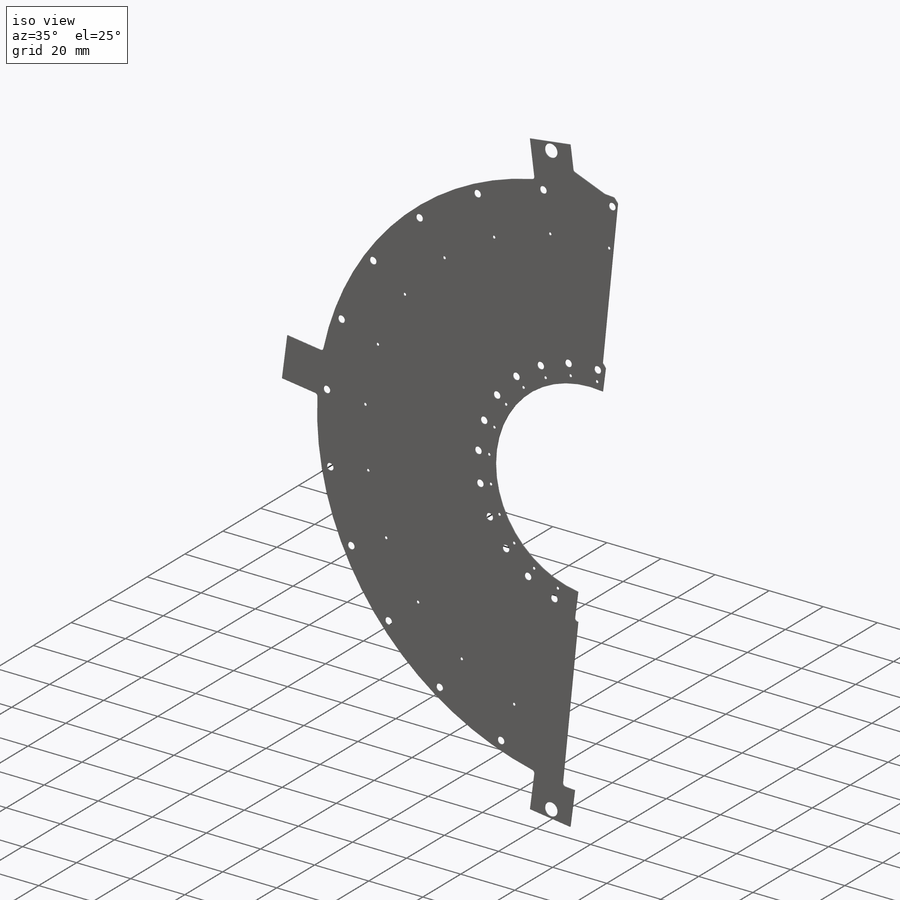
[diagram: iso view]
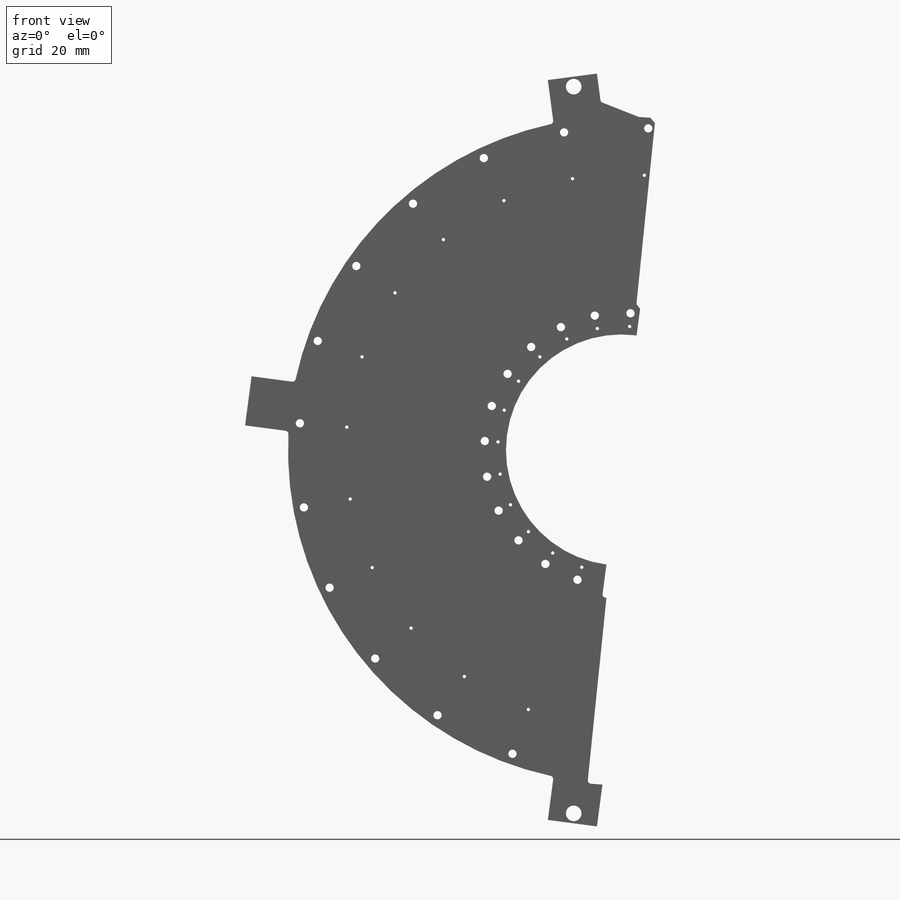
[diagram: front view]
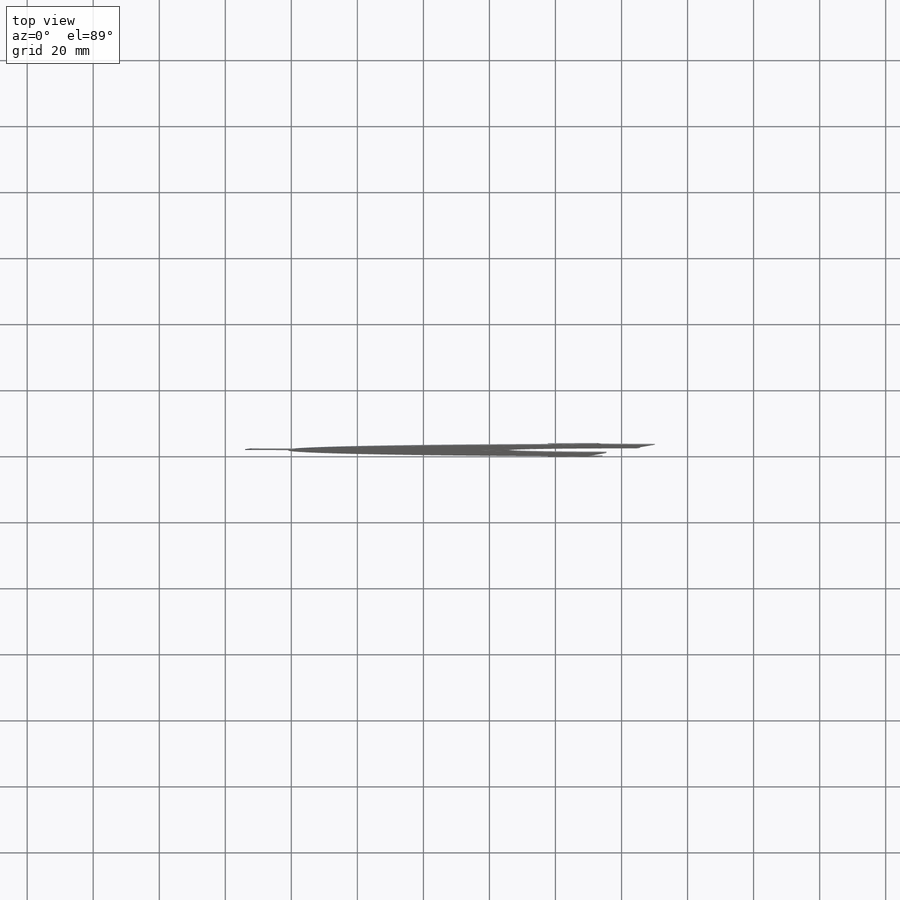
[diagram: top view]
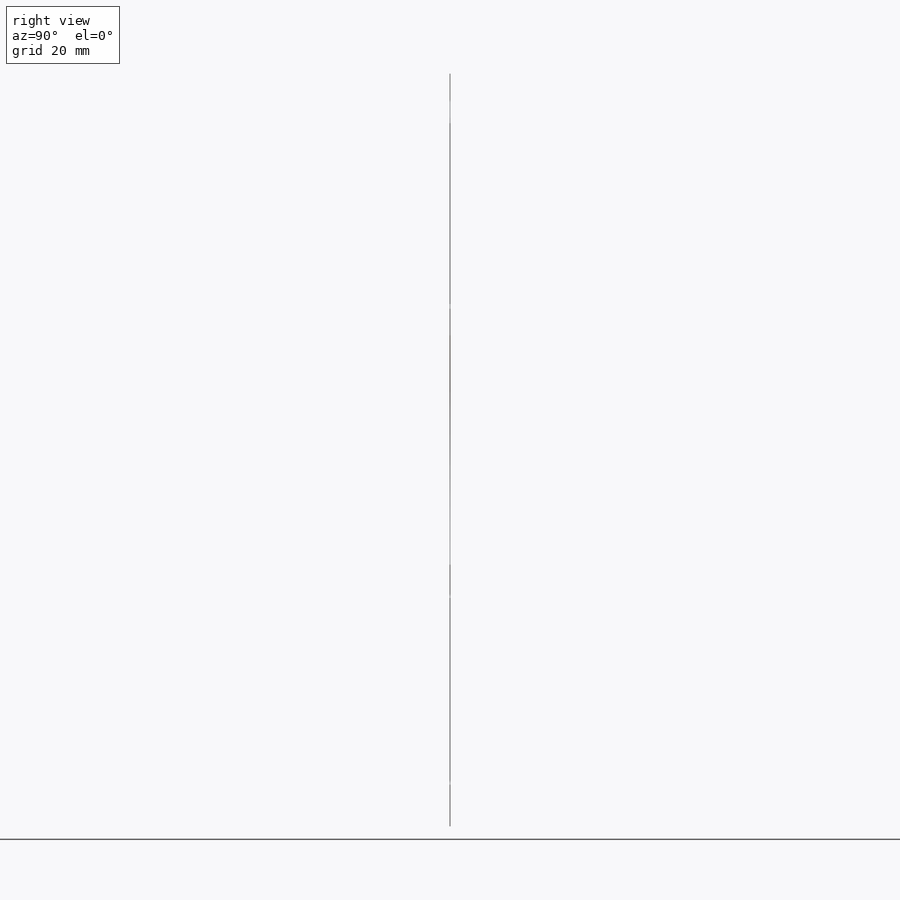
[diagram: right view]
SOLIDWORKS PART (.sldprt)
format: sldprt  version: not decoded by parser v0  size: 601,600 bytes
history: native  units: mm
features: sketch x5, cut_extrude x4, plane x3, pattern_circular x2, fillet x2, material x1, extrude x1, chamfer x1 + 2 further entries (+13 scaffold rows collapsed)
feature tree (34):
  scaffold x13  (default folders/planes/origin — collapsed)
  material  "Material <not specified>"
  plane  "Plane1"
  plane  "Plane2"
  plane  "Plane3"
  "Axis2"
  "Axis3"
  sketch  "Sketch7"  dims[c1.D1=35.0mm c1.D2=101.0mm c1.D4=45.0mm c2.D2=35.0mm c2.D3=101.0mm c2.D14=45.0mm c2.D17=101.5mm c3.D3=110.0mm c4.D3=3.25deg c4.D5=110.0mm c5.D5=7.5deg c5.D1=110.0mm c6.D1=7.5deg c6.D2=~5.51815mm c7.D2=7.5deg c7.D3=~5.51815mm c8.D3=7.5deg c8.D4=15.0mm c8.D5=114.0mm c8.D6=15.0mm c8.D7=116.5mm c8.D8=15.0mm c8.D9=116.5mm c9.D7=110.0mm c10.D7=7.5deg c10.D9=0.2794mm c11.D9=7.5deg c11.D10=114.0mm c11.D11=114.0mm c11.D12=~8.654258mm c11.D13=~12.457712mm c12.D13=~61.021365deg c12.D15=56.0mm c13.D15=~5.829862deg c13.D16=0.2794mm c14.D16=~5.829862deg]
  extrude  "Extrude5"  Depth=0.254mm
  sketch  "Sketch27"  dims[c1.D1=~3.96875mm c1.D2=0.5mm c2.D1=4.7244mm c2.D3=111.0mm c2.D4=4.7244mm c2.D6=4.7244mm c3.D3=178.0mm c3.D4=176.0mm c4.D4=6.0deg c4.D1=~4.96875mm c4.D2=0.2794mm c5.D2=7.5deg c5.D5=0.2794mm c6.D5=7.5deg c6.D6=111.0mm]
  cut_extrude  "Cut-Extrude2"  [1 undecoded]
  sketch  "Sketch31"  dims[c1.D3=3.5mm c1.D4=1.0mm c1.D5=1.5875mm c1.D7=2.1844mm c1.D8=~0.79375mm c1.D9=2.1844mm c2.D5=3.5mm c2.D11=3.5mm c3.D5=3.5mm c3.D3=2.5mm c3.D1=0.2794mm c4.D1=11.25deg c4.D2=~97.653451mm c4.D5=~2.54375mm c4.D6=83.5mm c4.D9=41.5mm c4.D10=37.5mm c4.D11=~43.403982mm c5.D11=7.5deg c5.D5=18.0mm c6.D11=10.0mm c6.D12=0.2794mm c7.D12=18.75deg c7.D5=11.0mm c7.D2=93.5mm c8.D2=1.0deg c8.D3=~85.520265mm c8.D5=97.75mm]
  cut_extrude  "Cut-Extrude4"  [1 undecoded]
  pattern_circular  "CirPattern1"  Count=12 Angle=15deg
  sketch  "Sketch34"  dims[c1.D2=1.5875mm c1.D4=3.5mm c1.D5=~0.79375mm c1.D9=2.5mm c1.D10=1.0mm c1.D12=3.5mm c1.D13=3.5mm c1.D11=3.5mm c1.D3=~97.653451mm c1.D6=83.5mm c1.D15=3.5mm c1.D16=3.5mm c2.D11=2.1844mm c2.D3=~0.79375mm c2.D4=2.1844mm c2.D1=~169.449665mm c3.D1=3.75deg c3.D2=~2.54375mm c3.D3=~106.653451mm c3.D6=102.25mm c3.D7=37.5mm c3.D8=41.5mm c3.D11=~9.977047mm c4.D11=7.5deg c4.D2=~177.004686mm c5.D2=11.25deg c5.D12=18.0mm c5.D13=18.0mm c6.D2=0.2794mm c7.D2=11.25deg c7.D11=18.0mm c7.D12=10.0mm c8.D11=11.0mm c8.D13=~174.870284mm c9.D13=1.0deg c9.D14=10.0mm c9.D15=10.0mm c9.D3=~178.296196mm c10.D3=1.0deg c10.D4=97.75mm c10.D2=~29.742193mm c11.D2=18.75deg c11.D3=37.5mm c11.D4=41.5mm]
  cut_extrude  "Cut-Extrude6"  [1 undecoded]
  pattern_circular  "CirPattern2"  Count=12 Angle=15deg
  fillet  "Fillet1"  Radius=1mm
  chamfer  "Chamfer2"  Distance=1.5mm Angle=45deg
  sketch  "Sketch35"  dims[c1.D1=~1.453678mm c2.D1=45.0deg c2.D2=~1.859761mm]
  cut_extrude  "Cut-Extrude7"  [1 undecoded]
  fillet  "Fillet2"  Radius=1mm
decode coverage: 11 of 15 modeling features carry decoded parameters; 2 rows unclassified (native names shown)
note: ~ marks probable driven/reference dimensions
note: 4 parameter values undecoded
summary: no parameter record found for 4 features
note: suppression state not decoded; provenance and decode notes live in map.json
